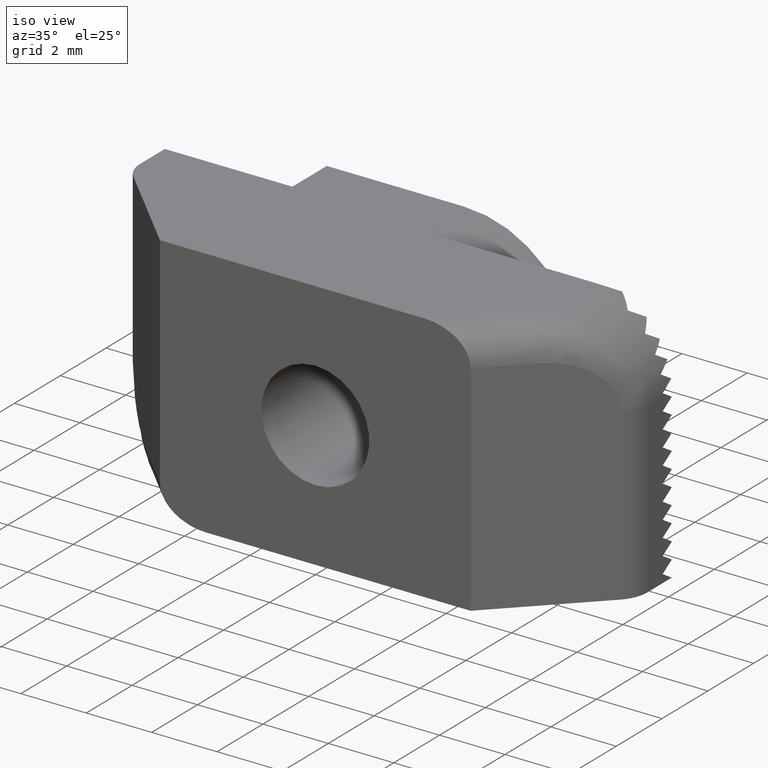
[diagram: clean part render]
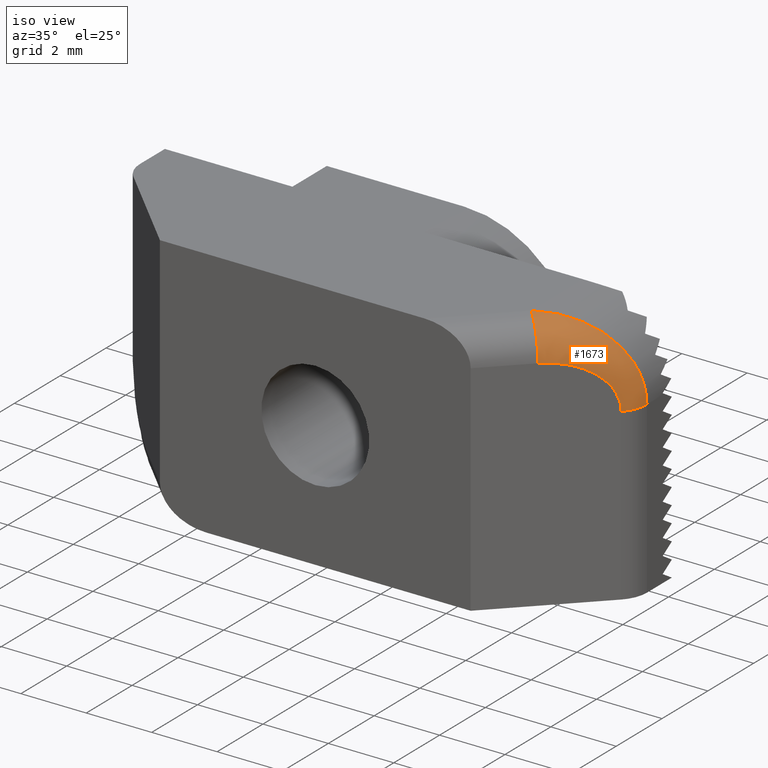
[diagram: same view with one face highlighted and labeled with its STEP entity id]
A machine part, iso view. The second image highlights one B-rep face of the part: STEP entity #1673.
In plain terms, the highlighted face is a freeform B-spline surface patch.
Its self-contained STEP definition (entity closure, byte-faithful):
#15=(
BOUNDED_SURFACE()
B_SPLINE_SURFACE(3,2,((#2845,#2846,#2847),(#2848,#2849,#2850),(#2851,#2852,
#2853),(#2854,#2855,#2856),(#2857,#2858,#2859),(#2860,#2861,#2862),(#2863,
#2864,#2865),(#2866,#2867,#2868),(#2869,#2870,#2871),(#2872,#2873,#2874)),
 .UNSPECIFIED.,.F.,.F.,.F.)
B_SPLINE_SURFACE_WITH_KNOTS((4,2,2,2,4),(3,3),(1.5707963267949,1.96349540849362,
2.35619449019234,2.74889357189107,3.14159265358979),(0.,1.),
 .UNSPECIFIED.)
GEOMETRIC_REPRESENTATION_ITEM()
RATIONAL_B_SPLINE_SURFACE(((1.,0.707106781186547,1.),(1.,0.739849752031205,
1.),(1.,0.770234554071456,1.),(1.,0.823878396803166,1.),(1.,0.847131660795769,
1.),(1.,0.884919146773108,1.),(1.,0.899458171431003,1.),(1.,0.918937540419521,
1.),(1.,0.92388861105057,1.),(1.,0.923879532511287,1.)))
REPRESENTATION_ITEM('')
SURFACE()
);
#17=(
BOUNDED_CURVE()
B_SPLINE_CURVE(3,(#2525,#2526,#2527,#2528,#2529,#2530,#2531,#2532,#2533,
#2534),.UNSPECIFIED.,.F.,.F.)
B_SPLINE_CURVE_WITH_KNOTS((4,2,2,2,4),(1.5707963267949,1.96349540849362,
2.35619449019234,2.74889357189107,3.14159265358979),.UNSPECIFIED.)
CURVE()
GEOMETRIC_REPRESENTATION_ITEM()
RATIONAL_B_SPLINE_CURVE((1.,1.,1.,1.,1.,1.,1.,1.,1.,1.))
REPRESENTATION_ITEM('')
);
#72=B_SPLINE_CURVE_WITH_KNOTS('',3,(#2382,#2383,#2384,#2385,#2386,#2387,
#2388,#2389,#2390,#2391,#2392,#2393,#2394),.UNSPECIFIED.,.F.,.F.,(4,3,3,
3,4),(3.14159265358979,3.53429173528852,3.92699081698724,4.31968989868597,
4.71238898038469),.UNSPECIFIED.);
#227=FACE_OUTER_BOUND('',#314,.T.);
#314=EDGE_LOOP('',(#1564,#1565,#1566,#1567));
#683=CIRCLE('',#1838,1.);
#684=CIRCLE('',#1839,1.);
#707=VERTEX_POINT('',#2379);
#708=VERTEX_POINT('',#2381);
#710=VERTEX_POINT('',#2398);
#757=VERTEX_POINT('',#2496);
#872=EDGE_CURVE('',#707,#708,#72,.T.);
#938=EDGE_CURVE('',#757,#710,#17,.T.);
#1090=EDGE_CURVE('',#757,#708,#683,.T.);
#1091=EDGE_CURVE('',#710,#707,#684,.T.);
#1564=ORIENTED_EDGE('',*,*,#1090,.T.);
#1565=ORIENTED_EDGE('',*,*,#872,.F.);
#1566=ORIENTED_EDGE('',*,*,#1091,.F.);
#1567=ORIENTED_EDGE('',*,*,#938,.F.);
#1673=ADVANCED_FACE('',(#227),#15,.T.);
#1838=AXIS2_PLACEMENT_3D('',#2844,#2304,#2305);
#1839=AXIS2_PLACEMENT_3D('',#2875,#2306,#2307);
#2304=DIRECTION('center_axis',(0.707106781186547,0.707106781186548,0.));
#2305=DIRECTION('ref_axis',(-0.707106781186548,0.707106781186547,0.));
#2306=DIRECTION('center_axis',(0.,0.,-1.));
#2307=DIRECTION('ref_axis',(-1.,0.,0.));
#2379=CARTESIAN_POINT('',(7.45710678118655,2.70710678118655,5.2));
#2381=CARTESIAN_POINT('',(5.95710678118655,1.20710678118655,6.7));
#2382=CARTESIAN_POINT('Ctrl Pts',(7.45710678118655,2.70710678118655,5.2));
#2383=CARTESIAN_POINT('Ctrl Pts',(7.45710678117198,2.70710678117198,5.396384933334));
#2384=CARTESIAN_POINT('Ctrl Pts',(7.41806579133411,2.66806579133411,5.59262183825967));
#2385=CARTESIAN_POINT('Ctrl Pts',(7.34292607995348,2.59292607995348,5.77402514854764));
#2386=CARTESIAN_POINT('Ctrl Pts',(7.26778636857285,2.51778636857285,5.95542845883561));
#2387=CARTESIAN_POINT('Ctrl Pts',(7.15660703792746,2.40660703792746,6.12182008681863));
#2388=CARTESIAN_POINT('Ctrl Pts',(7.01776695296637,2.26776695296637,6.26066017177982));
#2389=CARTESIAN_POINT('Ctrl Pts',(6.87892686800528,2.12892686800528,6.39950025674101));
#2390=CARTESIAN_POINT('Ctrl Pts',(6.71253524449344,1.96253524449344,6.51067958553414));
#2391=CARTESIAN_POINT('Ctrl Pts',(6.53113192973418,1.78113192973418,6.58581929876693));
#2392=CARTESIAN_POINT('Ctrl Pts',(6.34972861497493,1.59972861497493,6.66095901199972));
#2393=CARTESIAN_POINT('Ctrl Pts',(6.15349171787875,1.40349171787875,6.69999999999506));
#2394=CARTESIAN_POINT('Ctrl Pts',(5.95710678118655,1.20710678118655,6.7));
#2398=CARTESIAN_POINT('',(7.75,3.41421356237309,5.2));
#2496=CARTESIAN_POINT('',(5.25,1.9142135623731,7.7));
#2525=CARTESIAN_POINT('Ctrl Pts',(5.25,1.9142135623731,7.7));
#2526=CARTESIAN_POINT('Ctrl Pts',(5.57730822782034,2.11059849906542,7.7));
#2527=CARTESIAN_POINT('Ctrl Pts',(5.90436972298051,2.3068353961615,7.63493168666613));
#2528=CARTESIAN_POINT('Ctrl Pts',(6.50904743884494,2.66964202567996,7.3844659758903));
#2529=CARTESIAN_POINT('Ctrl Pts',(6.78636681136445,2.83603364919183,7.19916709456828));
#2530=CARTESIAN_POINT('Ctrl Pts',(7.24916709456829,3.11371381911401,6.73636681136445));
#2531=CARTESIAN_POINT('Ctrl Pts',(7.43446597897714,3.22489314975939,6.45904743139265));
#2532=CARTESIAN_POINT('Ctrl Pts',(7.68493168357929,3.37517257252065,5.8543697304328));
#2533=CARTESIAN_POINT('Ctrl Pts',(7.75,3.41421356235853,5.52730822222336));
#2534=CARTESIAN_POINT('Ctrl Pts',(7.75,3.4142135623731,5.2));
#2844=CARTESIAN_POINT('Origin',(5.25,1.9142135623731,6.7));
#2845=CARTESIAN_POINT('Ctrl Pts',(5.95710678118655,1.20710678118655,6.7));
#2846=CARTESIAN_POINT('Ctrl Pts',(5.95710678118655,1.20710678118655,7.7));
#2847=CARTESIAN_POINT('Ctrl Pts',(5.25,1.9142135623731,7.7));
#2848=CARTESIAN_POINT('Ctrl Pts',(6.15349171787875,1.40349171787875,6.69999999999506));
#2849=CARTESIAN_POINT('Ctrl Pts',(6.20722077648219,1.45722077648348,7.61157134402251));
#2850=CARTESIAN_POINT('Ctrl Pts',(5.57730822782034,2.11059849906542,7.7));
#2851=CARTESIAN_POINT('Ctrl Pts',(6.34972861497493,1.59972861497493,6.66095901199972));
#2852=CARTESIAN_POINT('Ctrl Pts',(6.45524434611716,1.70524434611728,7.48213635596185));
#2853=CARTESIAN_POINT('Ctrl Pts',(5.90436972298051,2.3068353961615,7.63493168666613));
#2854=CARTESIAN_POINT('Ctrl Pts',(6.71253524449344,1.96253524449344,6.51067958553414));
#2855=CARTESIAN_POINT('Ctrl Pts',(6.89345683740249,2.14345683740237,7.15476236154009));
#2856=CARTESIAN_POINT('Ctrl Pts',(6.50904743884494,2.66964202567996,7.3844659758903));
#2857=CARTESIAN_POINT('Ctrl Pts',(6.87892686800528,2.12892686800528,6.39950025674101));
#2858=CARTESIAN_POINT('Ctrl Pts',(7.09050489437763,2.34050489437763,6.95811197474755));
#2859=CARTESIAN_POINT('Ctrl Pts',(6.78636681136445,2.83603364919183,7.19916709456828));
#2860=CARTESIAN_POINT('Ctrl Pts',(7.15660703792746,2.40660703792746,6.12182008681863));
#2861=CARTESIAN_POINT('Ctrl Pts',(7.40947469103179,2.65947469103179,6.51566999677633));
#2862=CARTESIAN_POINT('Ctrl Pts',(7.24916709456829,3.11371381911401,6.73636681136445));
#2863=CARTESIAN_POINT('Ctrl Pts',(7.26778636857285,2.51778636857285,5.95542845883561));
#2864=CARTESIAN_POINT('Ctrl Pts',(7.53711795705594,2.7871179570559,6.26781553109764));
#2865=CARTESIAN_POINT('Ctrl Pts',(7.43446597897714,3.22489314975939,6.45904743139265));
#2866=CARTESIAN_POINT('Ctrl Pts',(7.41806579133411,2.66806579133411,5.59262183825966));
#2867=CARTESIAN_POINT('Ctrl Pts',(7.70574344994623,2.95574344994627,5.74873340290066));
#2868=CARTESIAN_POINT('Ctrl Pts',(7.68493168357929,3.37517257252065,5.8543697304328));
#2869=CARTESIAN_POINT('Ctrl Pts',(7.45710678117198,2.70710678117198,5.396384933334));
#2870=CARTESIAN_POINT('Ctrl Pts',(7.74999999998782,2.99999999998778,5.47306031415199));
#2871=CARTESIAN_POINT('Ctrl Pts',(7.75,3.41421356235853,5.52730822222336));
#2872=CARTESIAN_POINT('Ctrl Pts',(7.45710678118655,2.70710678118655,5.2));
#2873=CARTESIAN_POINT('Ctrl Pts',(7.75,3.,5.2));
#2874=CARTESIAN_POINT('Ctrl Pts',(7.75,3.4142135623731,5.2));
#2875=CARTESIAN_POINT('Origin',(6.75,3.41421356237309,5.2));